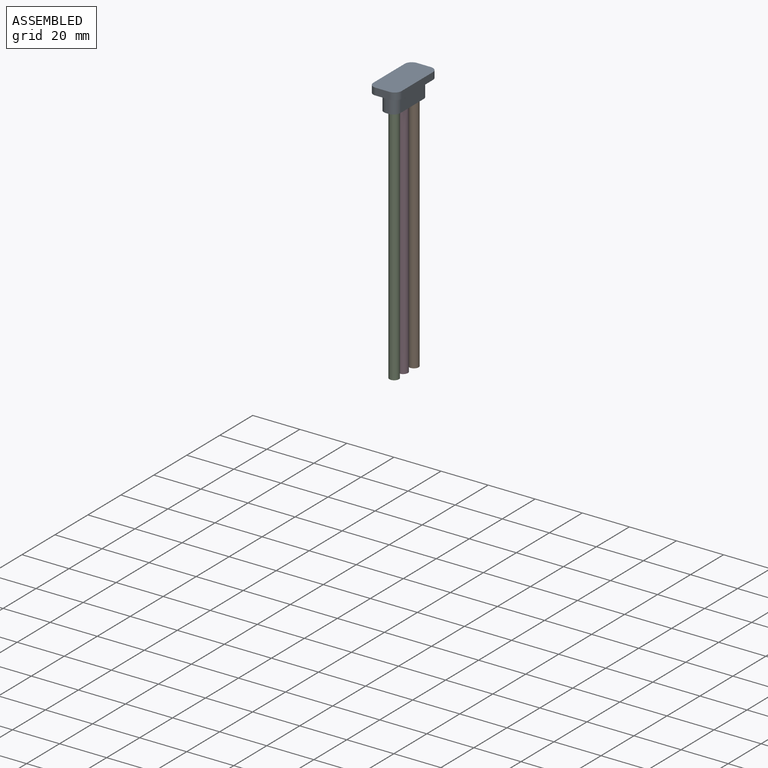
[diagram: assembled view]
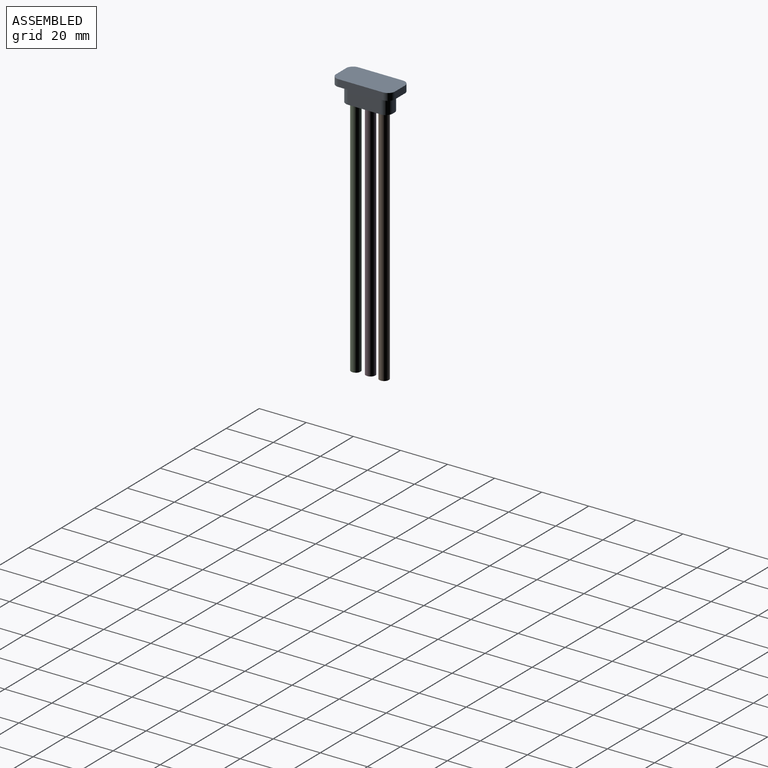
[diagram: assembled view, second angle]
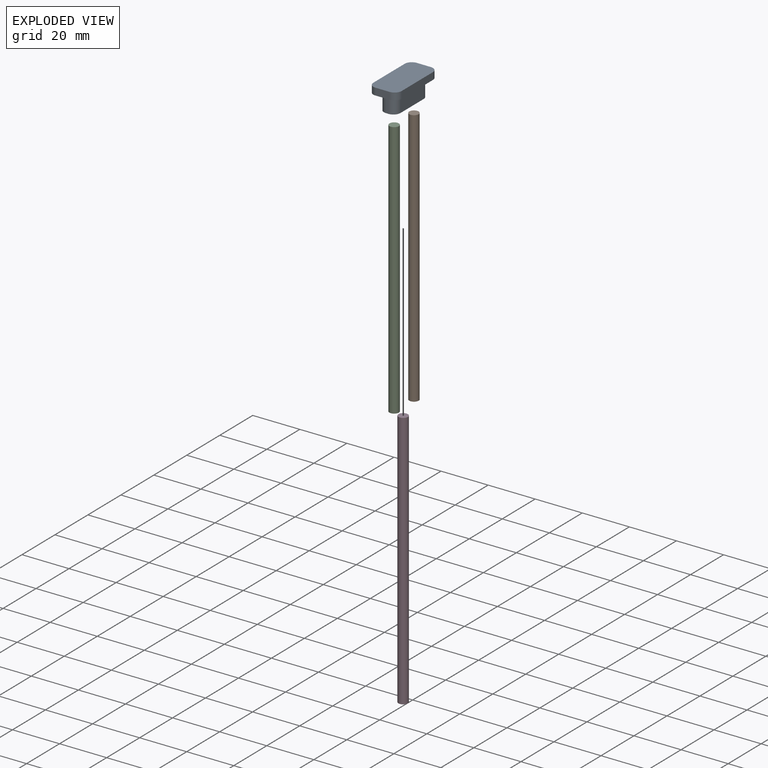
[diagram: exploded view]
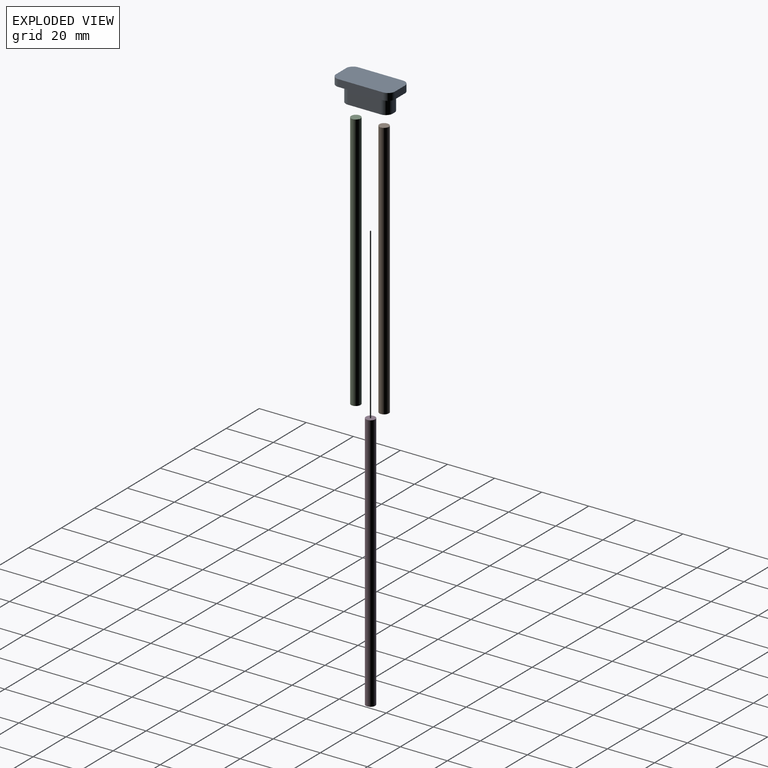
[diagram: exploded view, second angle]
ASSEMBLY  parts=4 mates=3
PART A: 25 faces, bbox 12x25x10 mm
  f0: cylinder r=3mm len=7mm, axis (0,0,-1), area 33mm2, adj f1,f10,f11,f21
  f1: plane 7x1mm, normal (0,1,0), area 7mm2, adj f0,f2,f11,f21
  f2: cylinder r=3mm len=7mm, axis (0,0,-1), area 33mm2, adj f1,f3,f11,f21
  f3: plane 14x7mm, normal (-1,0,0), area 98mm2, adj f2,f4,f11,f21
  f4: cylinder r=3mm len=7mm, axis (0,0,-1), area 33mm2, adj f3,f5,f11,f21
  f5: plane 7x1mm, normal (0,-1,0), area 7mm2, adj f4,f6,f11,f21
  f6: cylinder r=3mm len=7mm, axis (0,0,-1), area 33mm2, adj f5,f10,f11,f21
  f7: cylinder r=2.12mm len=7mm, axis (0,0,-1), area 93.5mm2, adj f11,f22
  f8: cylinder r=2.12mm len=7mm, axis (0,0,-1), area 93.5mm2, adj f11,f23
  f9: cylinder r=2.12mm len=7mm, axis (0,0,-1), area 93.5mm2, adj f11,f24
  f10: plane 14x7mm, normal (1,0,0), area 98mm2, adj f0,f6,f11,f21
  f11: plane 20x7mm, normal (0,0,1), area 89.7mm2, adj f0,f1,f2,f3,f4,f5,f6,f7
  f12: plane 25x12mm, normal (0,0,-1), area 292.3mm2, adj f13,f14,f15,f16,f17,f18,f19,f20
  f13: cylinder r=3mm len=3mm, axis (0,0,-1), area 14.1mm2, adj f12,f14,f20,f21
  f14: plane 6x3mm, normal (0,-1,0), area 18mm2, adj f12,f13,f15,f21
  f15: cylinder r=3mm len=3mm, axis (0,0,-1), area 14.1mm2, adj f12,f14,f16,f21
  f16: plane 19x3mm, normal (1,0,0), area 57mm2, adj f12,f15,f17,f21
  f17: cylinder r=3mm len=3mm, axis (0,0,-1), area 14.1mm2, adj f12,f16,f18,f21
  f18: plane 6x3mm, normal (0,1,0), area 18mm2, adj f12,f17,f19,f21
  f19: cylinder r=3mm len=3mm, axis (0,0,-1), area 14.1mm2, adj f12,f18,f20,f21
  f20: plane 19x3mm, normal (-1,0,0), area 57mm2, adj f12,f13,f19,f21
  f21: plane 25x12mm, normal (0,0,1), area 160mm2, adj f0,f1,f2,f3,f4,f5,f6,f10
  f22: plane 4.25x4.25mm, normal (0,0,1), area 14.2mm2, adj f7
  f23: plane 4.25x4.25mm, normal (0,0,1), area 14.2mm2, adj f8
  f24: plane 4.25x4.25mm, normal (0,0,1), area 14.2mm2, adj f9
PART B: 3 faces, bbox 4x4x110 mm
  f0: cylinder r=2mm len=110mm, axis (0,0,-1), area 1382.3mm2, adj f1,f2
  f1: plane 4x4mm, normal (0,0,1), area 12.6mm2, adj f0
  f2: plane 4x4mm, normal (0,0,-1), area 12.6mm2, adj f0
PART C: same geometry as B
PART D: same geometry as B
PLACE A rot(axis=(1,0,0),180deg) t=(-10.28,53.67,113)mm
PLACE B at identity
PLACE C t=(0,-12,0)mm
PLACE D rot(axis=(-1,0,0),180deg) t=(-0.37,113.33,110)mm
MATE fastened A.f9 <-> B.f0  axis (0,0,-1) through (-59.23,59.67,110)mm
MATE fastened A.f8 <-> C.f0  axis (0,0,-1) through (-59.23,47.67,110)mm
MATE fastened A.f7 <-> D.f0  axis (0,0,-1) through (-59.59,53.67,110)mm
